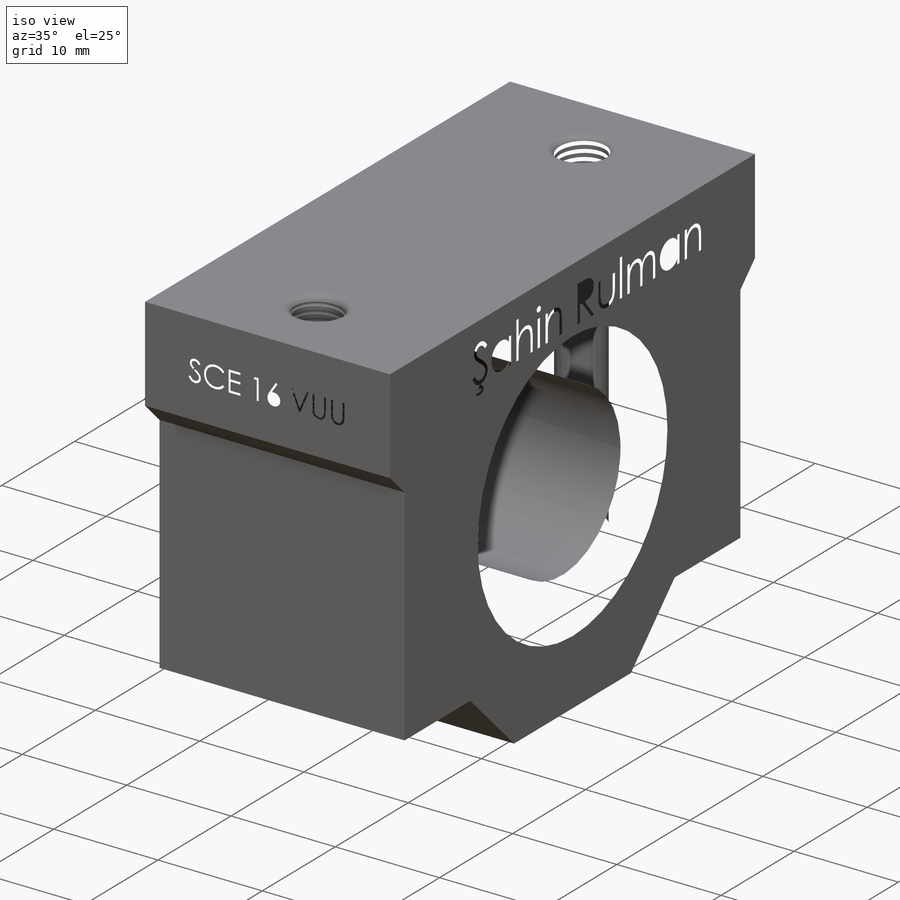
[diagram: iso view]
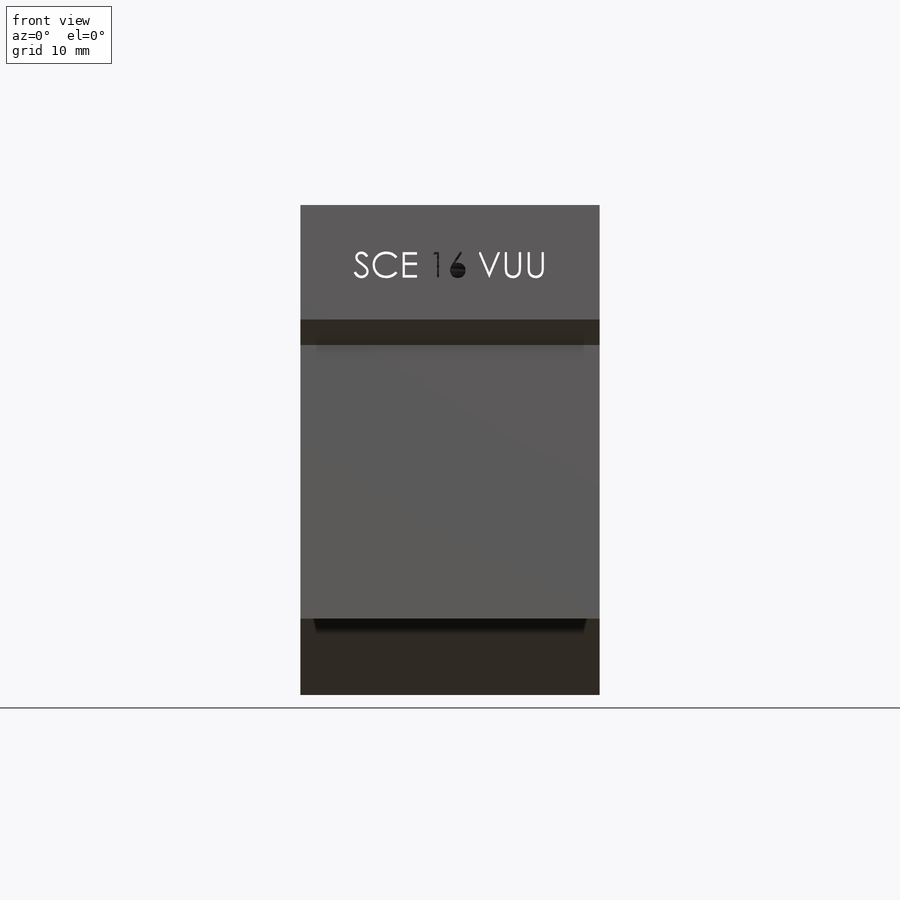
[diagram: front view]
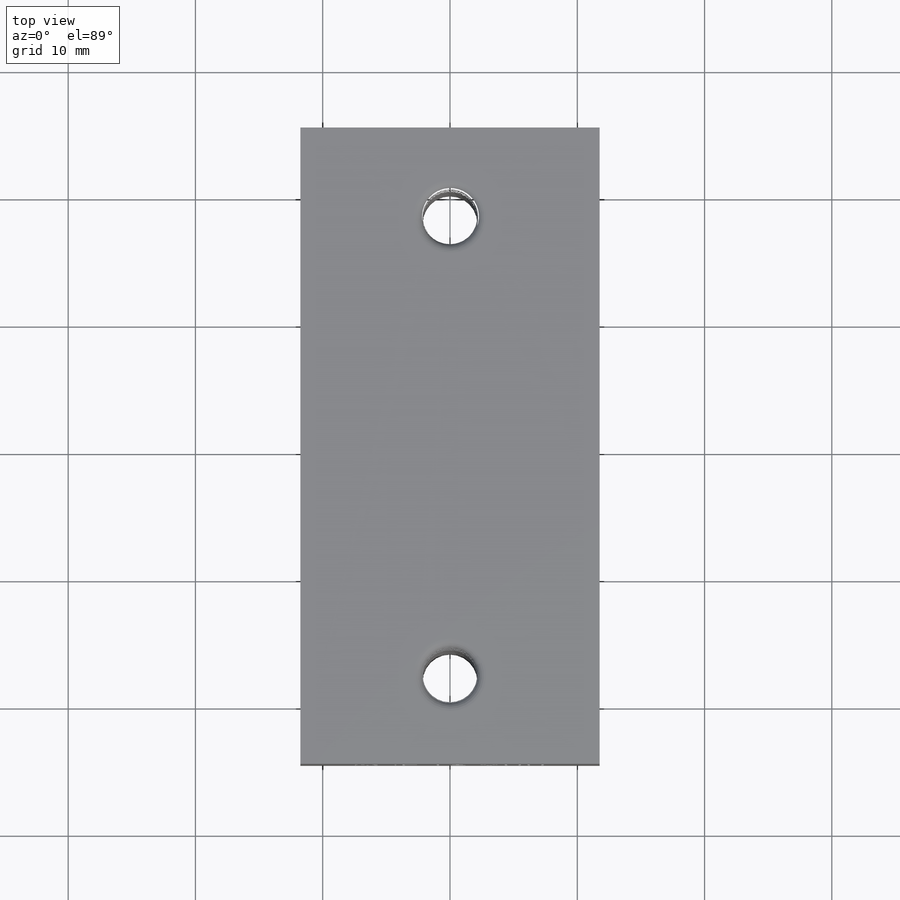
[diagram: top view]
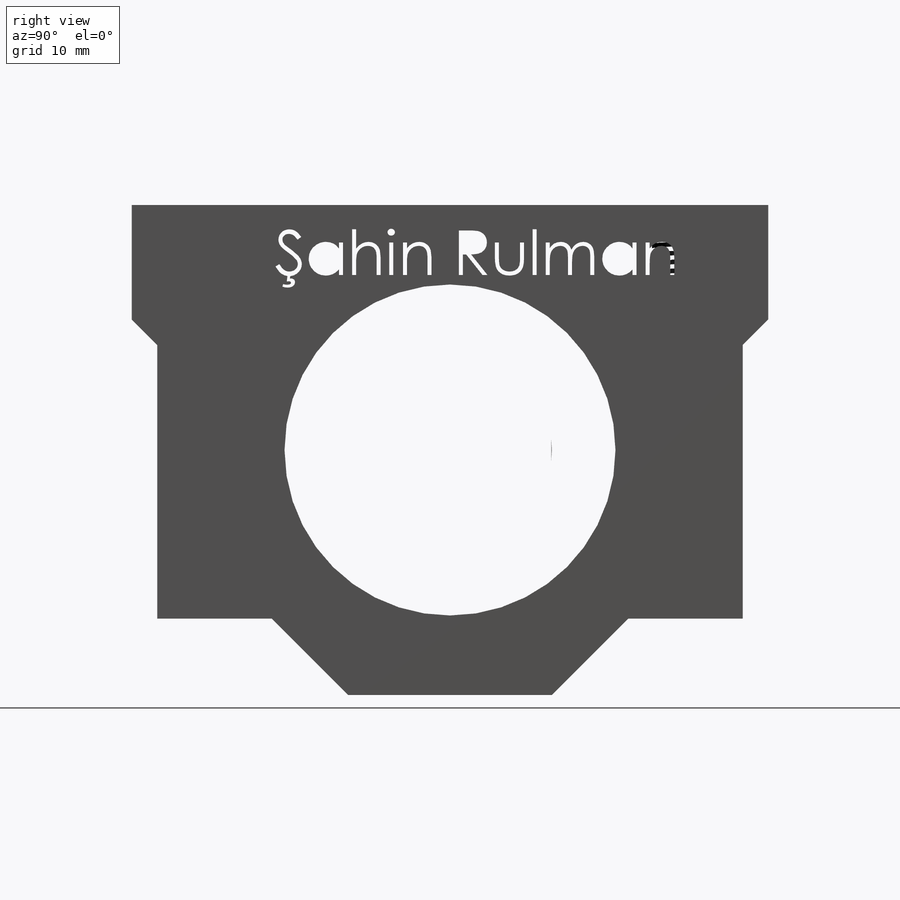
[diagram: right view]
SOLIDWORKS PART (.sldprt)
format: sldprt  version: not decoded by parser v0  size: 1,236,992 bytes
history: native  units: mm
features: sketch x7, cut_extrude x4, mirror x2, material x1, extrude x1, fillet x1, helix x1, plane x1, sweep x1 (+11 scaffold rows collapsed)
feature tree (30):
  scaffold x11  (default folders/planes/origin — collapsed)
  material  "Material <not specified>"
  sketch  "Sketch1"  dims[c1.D9=16.0mm c1.D1=50.0mm c1.D2=25.0mm c1.D3=9.0mm c1.D4=2.0mm c1.D5=2.0mm c1.D6=32.5mm c1.D7=38.5mm c1.D8=9.0mm c2.D9=6.0mm c2.D10=19.25mm]
  extrude  "Boss-Extrude1"  Depth=23.5mm
  sketch  "Sketch3"  dims[D2=4.3mm D1=18.0mm]
  cut_extrude  "Cut-Extrude1"  [1 undecoded]
  fillet  "Fillet1"  Radius=0.7mm
  sketch  "Sketch4"
  helix  "Helix/Spiral1"  Pitch=12mm
  plane  "Plane1"
  sketch  "Sketch5"  dims[D1=0.35mm]
  sweep  "Cut-Sweep1"
  mirror  "Mirror1"
  sketch  "Sketch6"
  cut_extrude  "Cut-Extrude2"  Depth=1mm
  sketch  "Sketch7"
  cut_extrude  "Cut-Extrude3"  Depth=1mm
  sketch  "Sketch8"  dims[D1=26.0mm]
  cut_extrude  "Cut-Extrude4"  Depth=1mm
  mirror  "Mirror2"
decode coverage: 10 of 17 modeling features carry decoded parameters
note: 1 parameter value undecoded
note: suppression state not decoded; provenance and decode notes live in map.json
